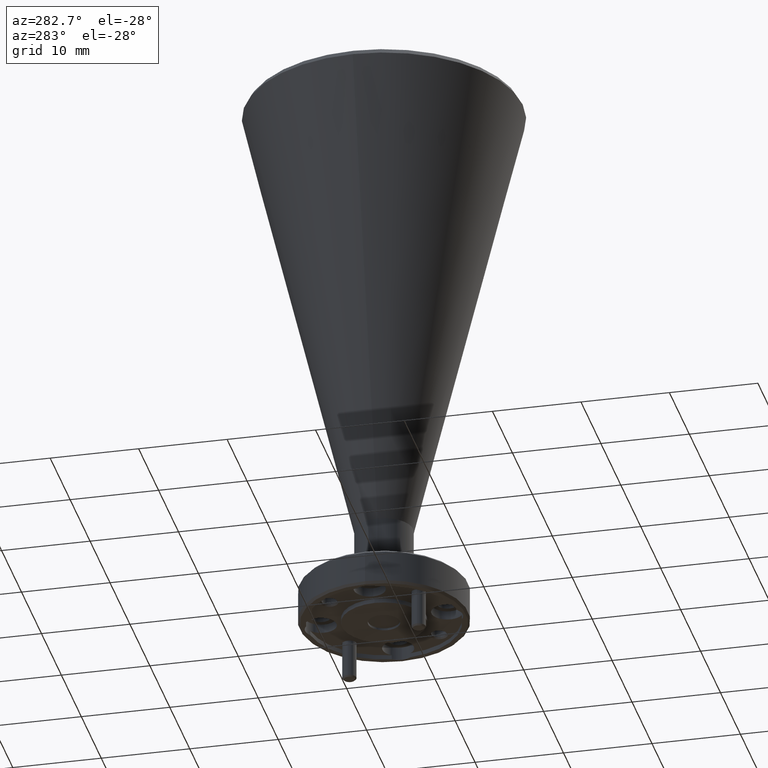
[diagram: clean part render]
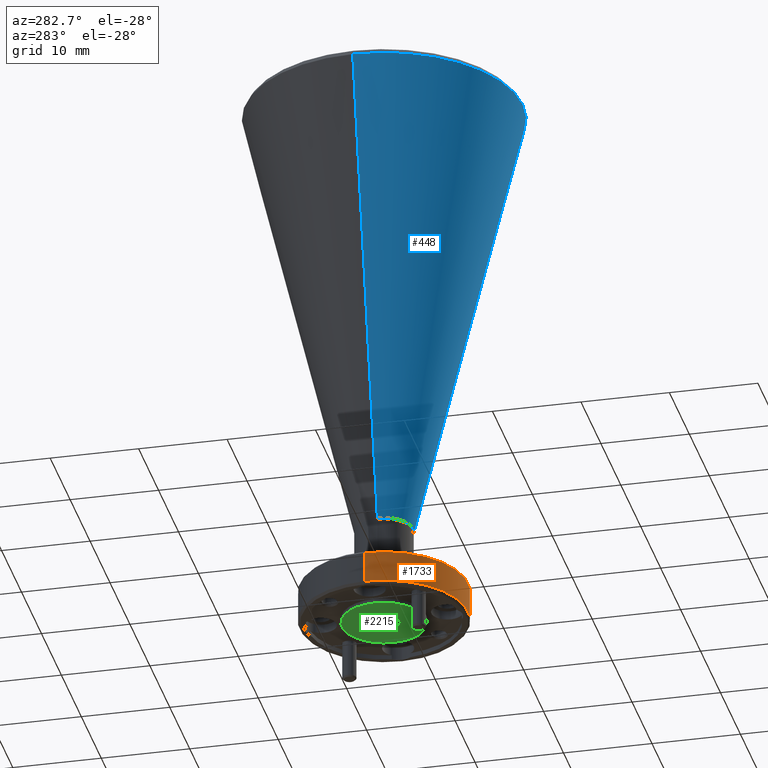
[diagram: same view with three faces highlighted in distinct colors, each labeled with its STEP entity id]
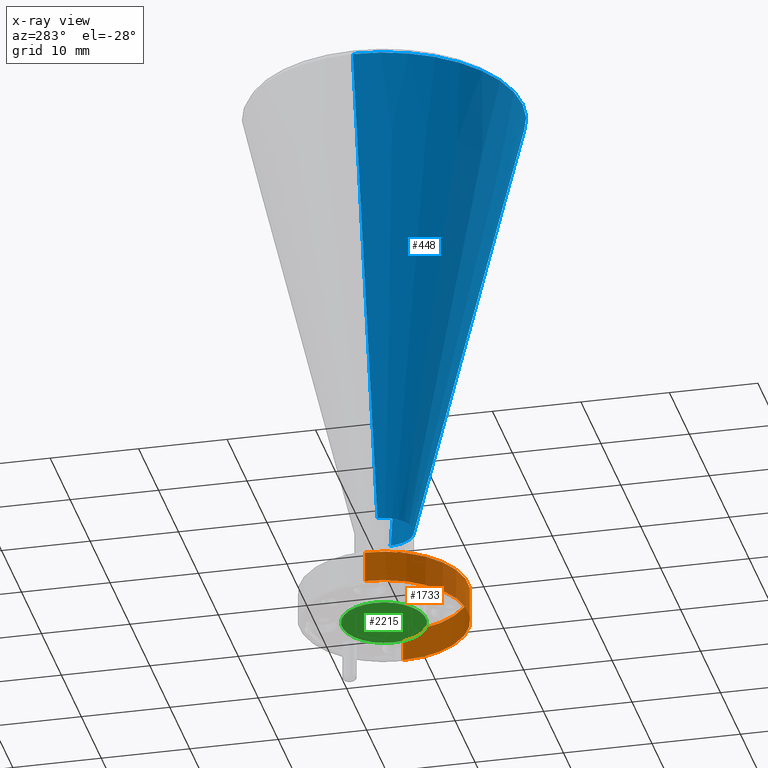
[diagram: x-ray of the same camera — body ghosted, the three highlighted faces saturated]
A machine part, auxiliary view with three faces highlighted in distinct colors.
The next image is the same camera in x-ray (body ghosted, the three faces saturated) — at least one of them is partly hidden behind the body in this view.
Their STEP definitions:

[orange] entity #1733 — the highlighted cylindrical surface (partial cylindrical patch) has radius 9.525 mm, axis along (-0, -0, 1).
#20 = VERTEX_POINT ( 'NONE', #1760 ) ;
#44 = CARTESIAN_POINT ( 'NONE',  ( 0.1834101726242371999, 0.9719871311564923788, 0.2484884289388701040 ) ) ;
#86 = EDGE_CURVE ( 'NONE', #20, #739, #507, .T. ) ;
#96 = ORIENTED_EDGE ( 'NONE', *, *, #1343, .T. ) ;
#112 = ORIENTED_EDGE ( 'NONE', *, *, #86, .F. ) ;
#155 = DIRECTION ( 'NONE',  ( 0.000000000000000000, 0.000000000000000000, -1.000000000000000000 ) ) ;
#196 = VECTOR ( 'NONE', #1925, 39.37007874015748143 ) ;
#359 = ORIENTED_EDGE ( 'NONE', *, *, #1844, .T. ) ;
#481 = DIRECTION ( 'NONE',  ( -1.000000000000000000, 0.000000000000000000, 0.000000000000000000 ) ) ;
#507 = LINE ( 'NONE', #650, #1725 ) ;
#508 = CARTESIAN_POINT ( 'NONE',  ( -0.1915898273757628278, 0.9719871311564923788, 0.3884884289388691458 ) ) ;
#646 = CARTESIAN_POINT ( 'NONE',  ( -0.1915898273757628278, 0.9719871311564923788, 0.2484884289388701040 ) ) ;
#650 = CARTESIAN_POINT ( 'NONE',  ( -0.5665898273757628001, 0.9719871311564923788, 5.773034835965200173 ) ) ;
#660 = LINE ( 'NONE', #2102, #196 ) ;
#704 = CIRCLE ( 'NONE', #1308, 0.3750000000000000555 ) ;
#739 = VERTEX_POINT ( 'NONE', #1086 ) ;
#868 = DIRECTION ( 'NONE',  ( 1.000000000000000000, 0.000000000000000000, 0.000000000000000000 ) ) ;
#873 = CIRCLE ( 'NONE', #1247, 0.3750000000000000555 ) ;
#970 = CARTESIAN_POINT ( 'NONE',  ( 0.1834101726242371999, 0.9719871311564923788, 0.3884884289388691458 ) ) ;
#1036 = DIRECTION ( 'NONE',  ( -0.000000000000000000, -0.000000000000000000, 1.000000000000000000 ) ) ;
#1039 = CYLINDRICAL_SURFACE ( 'NONE', #1953, 0.3750000000000000555 ) ;
#1086 = CARTESIAN_POINT ( 'NONE',  ( -0.5665898273757628001, 0.9719871311564923788, 0.3884884289388691458 ) ) ;
#1221 = DIRECTION ( 'NONE',  ( -0.000000000000000000, -0.000000000000000000, 1.000000000000000000 ) ) ;
#1247 = AXIS2_PLACEMENT_3D ( 'NONE', #646, #1036, #1740 ) ;
#1308 = AXIS2_PLACEMENT_3D ( 'NONE', #508, #155, #481 ) ;
#1343 = EDGE_CURVE ( 'NONE', #1670, #739, #704, .T. ) ;
#1378 = DIRECTION ( 'NONE',  ( -0.000000000000000000, -0.000000000000000000, 1.000000000000000000 ) ) ;
#1596 = CARTESIAN_POINT ( 'NONE',  ( -0.1915898273757628278, 0.9719871311564923788, 5.773034835965200173 ) ) ;
#1670 = VERTEX_POINT ( 'NONE', #970 ) ;
#1725 = VECTOR ( 'NONE', #1378, 39.37007874015748143 ) ;
#1733 = ADVANCED_FACE ( 'NONE', ( #2143 ), #1039, .T. ) ;
#1740 = DIRECTION ( 'NONE',  ( 1.000000000000000000, 0.000000000000000000, 0.000000000000000000 ) ) ;
#1759 = ORIENTED_EDGE ( 'NONE', *, *, #2284, .T. ) ;
#1760 = CARTESIAN_POINT ( 'NONE',  ( -0.5665898273757628001, 0.9719871311564923788, 0.2484884289388701040 ) ) ;
#1844 = EDGE_CURVE ( 'NONE', #2104, #1670, #660, .T. ) ;
#1925 = DIRECTION ( 'NONE',  ( -0.000000000000000000, -0.000000000000000000, 1.000000000000000000 ) ) ;
#1953 = AXIS2_PLACEMENT_3D ( 'NONE', #1596, #1221, #868 ) ;
#2102 = CARTESIAN_POINT ( 'NONE',  ( 0.1834101726242371999, 0.9719871311564923788, 5.773034835965200173 ) ) ;
#2104 = VERTEX_POINT ( 'NONE', #44 ) ;
#2143 = FACE_OUTER_BOUND ( 'NONE', #2299, .T. ) ;
#2284 = EDGE_CURVE ( 'NONE', #20, #2104, #873, .T. ) ;
#2299 = EDGE_LOOP ( 'NONE', ( #112, #1759, #359, #96 ) ) ;

[blue] entity #448 — the highlighted conical surface has half-angle 13.5 deg.
#4 = DIRECTION ( 'NONE',  ( -0.2334453638558987021, 2.858881176219155719E-17, 0.9723699203976782224 ) ) ;
#71 = CARTESIAN_POINT ( 'NONE',  ( -0.1915898273757628278, 0.9719871311564923788, 0.6841421239609210003 ) ) ;
#268 = DIRECTION ( 'NONE',  ( -0.000000000000000000, -0.000000000000000000, 1.000000000000000000 ) ) ;
#311 = DIRECTION ( 'NONE',  ( 0.2334453638558987021, 0.000000000000000000, 0.9723699203976782224 ) ) ;
#319 = AXIS2_PLACEMENT_3D ( 'NONE', #575, #1823, #1811 ) ;
#431 = EDGE_LOOP ( 'NONE', ( #1919, #539, #2175, #972 ) ) ;
#448 = ADVANCED_FACE ( 'NONE', ( #1173 ), #1815, .T. ) ;
#539 = ORIENTED_EDGE ( 'NONE', *, *, #1620, .T. ) ;
#575 = CARTESIAN_POINT ( 'NONE',  ( -0.1915898273757628278, 0.9719871311564923788, 2.714179180928925739 ) ) ;
#587 = CIRCLE ( 'NONE', #319, 0.6173687775235147113 ) ;
#614 = DIRECTION ( 'NONE',  ( 1.000000000000000000, 0.000000000000000000, 0.000000000000000000 ) ) ;
#841 = DIRECTION ( 'NONE',  ( 1.000000000000000000, 0.000000000000000000, 0.000000000000000000 ) ) ;
#960 = DIRECTION ( 'NONE',  ( -0.000000000000000000, -0.000000000000000000, 1.000000000000000000 ) ) ;
#972 = ORIENTED_EDGE ( 'NONE', *, *, #1517, .T. ) ;
#973 = CARTESIAN_POINT ( 'NONE',  ( -0.8089586048992774003, 0.9719871311564923788, 2.714179180928925739 ) ) ;
#989 = CARTESIAN_POINT ( 'NONE',  ( -0.1915898273757628278, 0.9719871311564923788, 0.6841421239609210003 ) ) ;
#1120 = VERTEX_POINT ( 'NONE', #973 ) ;
#1173 = FACE_OUTER_BOUND ( 'NONE', #431, .T. ) ;
#1275 = VERTEX_POINT ( 'NONE', #1550 ) ;
#1294 = EDGE_CURVE ( 'NONE', #1644, #2034, #2162, .T. ) ;
#1310 = CIRCLE ( 'NONE', #1911, 0.1300000000000000044 ) ;
#1417 = EDGE_CURVE ( 'NONE', #1275, #1120, #1831, .T. ) ;
#1517 = EDGE_CURVE ( 'NONE', #2034, #1120, #587, .T. ) ;
#1550 = CARTESIAN_POINT ( 'NONE',  ( -0.3215898273757628045, 0.9719871311564923788, 0.6841421239609210003 ) ) ;
#1612 = CARTESIAN_POINT ( 'NONE',  ( -0.3215898273757628045, 0.9719871311564923788, 0.6841421239609210003 ) ) ;
#1620 = EDGE_CURVE ( 'NONE', #1275, #1644, #1310, .T. ) ;
#1644 = VERTEX_POINT ( 'NONE', #2229 ) ;
#1811 = DIRECTION ( 'NONE',  ( -1.000000000000000000, 0.000000000000000000, 0.000000000000000000 ) ) ;
#1815 = CONICAL_SURFACE ( 'NONE', #2160, 0.1300000000000000044, 0.2356194490192276003 ) ;
#1823 = DIRECTION ( 'NONE',  ( 0.000000000000000000, 0.000000000000000000, -1.000000000000000000 ) ) ;
#1831 = LINE ( 'NONE', #1612, #2337 ) ;
#1911 = AXIS2_PLACEMENT_3D ( 'NONE', #71, #960, #614 ) ;
#1919 = ORIENTED_EDGE ( 'NONE', *, *, #1417, .F. ) ;
#1942 = CARTESIAN_POINT ( 'NONE',  ( -0.06158982737576283034, 0.9719871311564923788, 0.6841421239609210003 ) ) ;
#2014 = CARTESIAN_POINT ( 'NONE',  ( 0.4257789501477517446, 0.9719871311564923788, 2.714179180928925739 ) ) ;
#2034 = VERTEX_POINT ( 'NONE', #2014 ) ;
#2160 = AXIS2_PLACEMENT_3D ( 'NONE', #989, #268, #841 ) ;
#2162 = LINE ( 'NONE', #1942, #2293 ) ;
#2175 = ORIENTED_EDGE ( 'NONE', *, *, #1294, .T. ) ;
#2229 = CARTESIAN_POINT ( 'NONE',  ( -0.06158982737576283034, 0.9719871311564923788, 0.6841421239609210003 ) ) ;
#2293 = VECTOR ( 'NONE', #311, 39.37007874015748143 ) ;
#2337 = VECTOR ( 'NONE', #4, 39.37007874015748143 ) ;

[green] entity #2215 — the highlighted planar face has unit normal (0, -0, 1).
#76 = ORIENTED_EDGE ( 'NONE', *, *, #618, .F. ) ;
#134 = FACE_BOUND ( 'NONE', #510, .T. ) ;
#145 = ORIENTED_EDGE ( 'NONE', *, *, #2318, .F. ) ;
#289 = DIRECTION ( 'NONE',  ( -1.000000000000000000, 0.000000000000000000, 0.000000000000000000 ) ) ;
#362 = EDGE_CURVE ( 'NONE', #982, #1477, #1728, .T. ) ;
#488 = AXIS2_PLACEMENT_3D ( 'NONE', #2258, #828, #1924 ) ;
#510 = EDGE_LOOP ( 'NONE', ( #2152, #76 ) ) ;
#526 = CARTESIAN_POINT ( 'NONE',  ( -0.1915898273757628278, 0.9719871311564923788, 0.2384884289388688461 ) ) ;
#618 = EDGE_CURVE ( 'NONE', #986, #1442, #985, .T. ) ;
#669 = FACE_OUTER_BOUND ( 'NONE', #1317, .T. ) ;
#693 = DIRECTION ( 'NONE',  ( 0.000000000000000000, -0.000000000000000000, 1.000000000000000000 ) ) ;
#828 = DIRECTION ( 'NONE',  ( -0.000000000000000000, -0.000000000000000000, 1.000000000000000000 ) ) ;
#840 = PLANE ( 'NONE',  #1056 ) ;
#863 = DIRECTION ( 'NONE',  ( 0.000000000000000000, 0.000000000000000000, -1.000000000000000000 ) ) ;
#890 = DIRECTION ( 'NONE',  ( -0.000000000000000000, -0.000000000000000000, 1.000000000000000000 ) ) ;
#922 = CARTESIAN_POINT ( 'NONE',  ( -0.004089827375762810496, 0.9719871311564923788, 0.2384884289388688461 ) ) ;
#948 = AXIS2_PLACEMENT_3D ( 'NONE', #1242, #863, #289 ) ;
#978 = CIRCLE ( 'NONE', #1282, 0.1875000000000000278 ) ;
#982 = VERTEX_POINT ( 'NONE', #922 ) ;
#985 = CIRCLE ( 'NONE', #948, 0.07049999999999993772 ) ;
#986 = VERTEX_POINT ( 'NONE', #1659 ) ;
#1056 = AXIS2_PLACEMENT_3D ( 'NONE', #1569, #693, #1065 ) ;
#1065 = DIRECTION ( 'NONE',  ( 1.000000000000000000, 0.000000000000000000, 0.000000000000000000 ) ) ;
#1242 = CARTESIAN_POINT ( 'NONE',  ( -0.1915898273757628278, 0.9719871311564923788, 0.2384884289388688461 ) ) ;
#1282 = AXIS2_PLACEMENT_3D ( 'NONE', #526, #890, #2167 ) ;
#1317 = EDGE_LOOP ( 'NONE', ( #2043, #145 ) ) ;
#1420 = DIRECTION ( 'NONE',  ( -1.000000000000000000, 0.000000000000000000, 0.000000000000000000 ) ) ;
#1442 = VERTEX_POINT ( 'NONE', #1473 ) ;
#1473 = CARTESIAN_POINT ( 'NONE',  ( -0.2620898273757627517, 0.9719871311564923788, 0.2384884289388688461 ) ) ;
#1477 = VERTEX_POINT ( 'NONE', #2352 ) ;
#1569 = CARTESIAN_POINT ( 'NONE',  ( -0.1915898273757628278, 1.159487131156492490, 0.2384884289388688461 ) ) ;
#1659 = CARTESIAN_POINT ( 'NONE',  ( -0.1210898273757628901, 0.9719871311564923788, 0.2384884289388688461 ) ) ;
#1728 = CIRCLE ( 'NONE', #488, 0.1875000000000000278 ) ;
#1832 = EDGE_CURVE ( 'NONE', #1442, #986, #2051, .T. ) ;
#1924 = DIRECTION ( 'NONE',  ( 1.000000000000000000, 0.000000000000000000, 0.000000000000000000 ) ) ;
#2043 = ORIENTED_EDGE ( 'NONE', *, *, #362, .F. ) ;
#2051 = CIRCLE ( 'NONE', #2133, 0.07049999999999993772 ) ;
#2133 = AXIS2_PLACEMENT_3D ( 'NONE', #2326, #2286, #1420 ) ;
#2152 = ORIENTED_EDGE ( 'NONE', *, *, #1832, .F. ) ;
#2167 = DIRECTION ( 'NONE',  ( 1.000000000000000000, 0.000000000000000000, 0.000000000000000000 ) ) ;
#2215 = ADVANCED_FACE ( 'NONE', ( #134, #669 ), #840, .F. ) ;
#2258 = CARTESIAN_POINT ( 'NONE',  ( -0.1915898273757628278, 0.9719871311564923788, 0.2384884289388688461 ) ) ;
#2286 = DIRECTION ( 'NONE',  ( 0.000000000000000000, 0.000000000000000000, -1.000000000000000000 ) ) ;
#2318 = EDGE_CURVE ( 'NONE', #1477, #982, #978, .T. ) ;
#2326 = CARTESIAN_POINT ( 'NONE',  ( -0.1915898273757628278, 0.9719871311564923788, 0.2384884289388688461 ) ) ;
#2352 = CARTESIAN_POINT ( 'NONE',  ( -0.3790898273757628001, 0.9719871311564923788, 0.2384884289388688461 ) ) ;